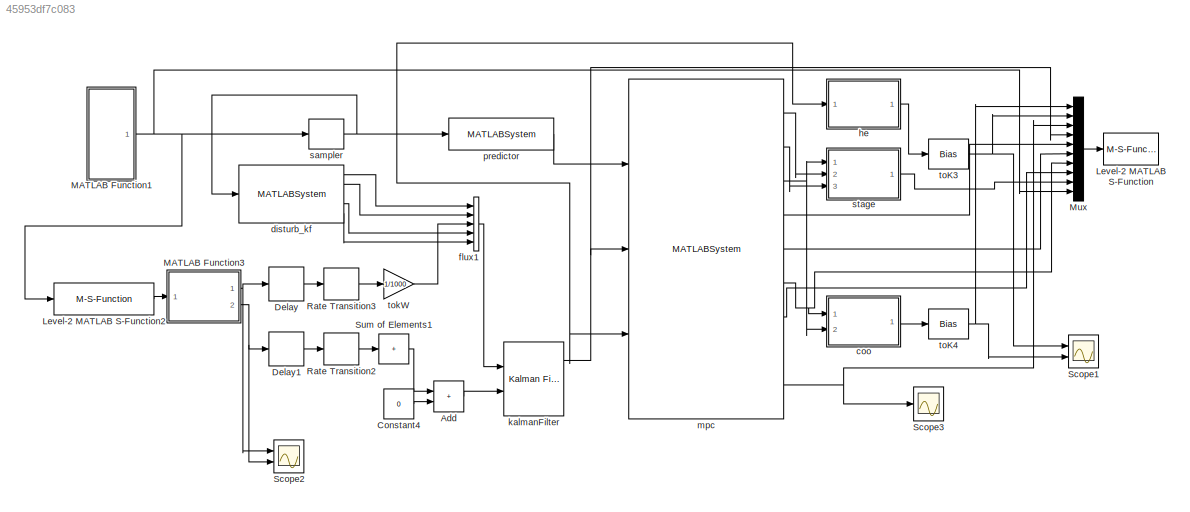
MODEL slx_45953df7c083
KIND model
CONFIG AbsTol = auto
CONFIG EnableMultiTasking = off
CONFIG FixedStep = 60
CONFIG MaxStep = auto
CONFIG MinStep = auto
CONFIG RelTol = 1e-5
CONFIG SampleTimeConstraint = Unconstrained
CONFIG Solver = FixedStepAuto
CONFIG SolverName = FixedStepAuto
CONFIG StartTime = 15*24*3600
CONFIG StopTime = 15*24*3600+30*60
BLOCK [Sum] Add
  IconShape = rectangular
  Ports = [2, 1]
BLOCK [Constant] Constant4
  Value = 0
BLOCK [Delay] Delay
  DelayLength = 1
  InputPortMap = u0
  Ports = [1, 1]
  SampleTime = 60
BLOCK [Delay] Delay1
  DelayLength = 1
  InitialCondition = 20
  InputPortMap = u0
  Ports = [1, 1]
  SampleTime = 60
BLOCK [M-S-Function] Level-2 MATLAB S-Function
  FunctionName = DBwrite_GEB
  Ports = [1, 1]
BLOCK [M-S-Function] Level-2 MATLAB S-Function2
  FunctionName = DBread_Meas_MPC
  Ports = [1, 1]
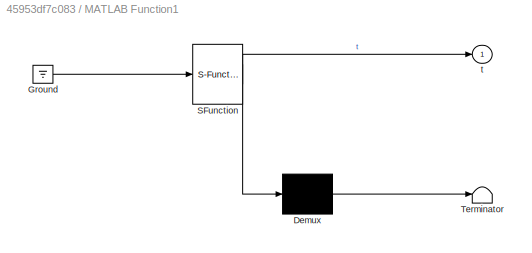
BLOCK [SubSystem] MATLAB Function1
  ErrorFcn = Stateflow.Translate.translate
  PermitHierarchicalResolution = ExplicitOnly
  Ports = [0, 1]
  RequestExecContextInheritance = off
  SFBlockType = MATLAB Function
  TreatAsAtomicUnit = on
BLOCK [Demux] MATLAB Function1/ Demux 
  Outputs = 1
  Ports = [1, 1]
BLOCK [Ground] MATLAB Function1/ Ground 
BLOCK [S-Function] MATLAB Function1/ SFunction 
  EnableBusSupport = on
  FunctionName = sf_sfun
  PortCounts = [1 2]
  Ports = [1, 2]
  SFcnIsStateOwnerBlock = off
  SFunctionDeploymentMode = off
  Tag = Stateflow S-Function 7
BLOCK [Terminator] MATLAB Function1/ Terminator 
BLOCK [Outport] MATLAB Function1/t
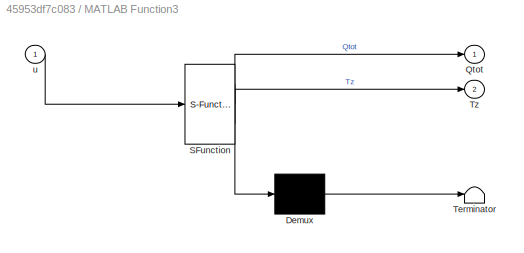
BLOCK [SubSystem] MATLAB Function3
  ErrorFcn = Stateflow.Translate.translate
  PermitHierarchicalResolution = ExplicitOnly
  Ports = [1, 2]
  RequestExecContextInheritance = off
  SFBlockType = MATLAB Function
  TreatAsAtomicUnit = on
BLOCK [Demux] MATLAB Function3/ Demux 
  Outputs = 1
  Ports = [1, 1]
BLOCK [S-Function] MATLAB Function3/ SFunction 
  EnableBusSupport = on
  FunctionName = sf_sfun
  PortCounts = [1 3]
  Ports = [1, 3]
  SFcnIsStateOwnerBlock = off
  SFunctionDeploymentMode = off
  Tag = Stateflow S-Function 8
BLOCK [Terminator] MATLAB Function3/ Terminator 
BLOCK [Outport] MATLAB Function3/Qtot
BLOCK [Outport] MATLAB Function3/Tz
  Port = 2
BLOCK [Inport] MATLAB Function3/u
BLOCK [Mux] Mux
  DisplayOption = bar
  Inputs = 10
  Ports = [10, 1]
BLOCK [RateTransition] Rate Transition2
  OutPortSampleTime = 900
BLOCK [RateTransition] Rate Transition3
  OutPortSampleTime = 900
BLOCK [Scope] Scope1
  Floating = off
  NumInputPorts = 2
  Ports = [2]
  ScopeSpecificationString = Simulink.scopes.TimeScopeBlockCfg('CurrentConfiguration', extmgr.ConfigurationSet(extmgr.Configuration('Core','General UI',true),extmgr.Configuration('Core','Source UI',true),extmgr.Configuration('Sources','WiredSimulink',true,'DataLoggingVariableName','ScopeData1'),extmgr.Configuration('Visuals','Time Domain',true,'SerializedDisplays',{struct('MinYLimReal','18.75','MaxYLimReal','31.25','YLabelRea...<+1394ch>
BLOCK [Scope] Scope2
  Floating = off
  NumInputPorts = 2
  Ports = [2]
  ScopeSpecificationString = Simulink.scopes.TimeScopeBlockCfg('CurrentConfiguration', extmgr.ConfigurationSet(extmgr.Configuration('Core','General UI',true),extmgr.Configuration('Core','Source UI',true),extmgr.Configuration('Sources','WiredSimulink',true,'DataLoggingVariableName','ScopeData1'),extmgr.Configuration('Visuals','Time Domain',true,'SerializedDisplays',{struct('MinYLimReal','18.75','MaxYLimReal','31.25','YLabelRea...<+1394ch>
BLOCK [Scope] Scope3
  Floating = off
  NumInputPorts = 1
  Ports = [1]
  ScopeSpecificationString = Simulink.scopes.TimeScopeBlockCfg('CurrentConfiguration', extmgr.ConfigurationSet(extmgr.Configuration('Core','General UI',true),extmgr.Configuration('Core','Source UI',true),extmgr.Configuration('Sources','WiredSimulink',true,'DataLoggingVariableName','ScopeData1'),extmgr.Configuration('Visuals','Time Domain',true,'SerializedDisplays',{struct('MinYLimReal','0.9','MaxYLimReal','1.1','YLabelReal','...<+1372ch>
BLOCK [Sum] Sum of Elements1
  IconShape = rectangular
  Inputs = +
  Ports = [1, 1]
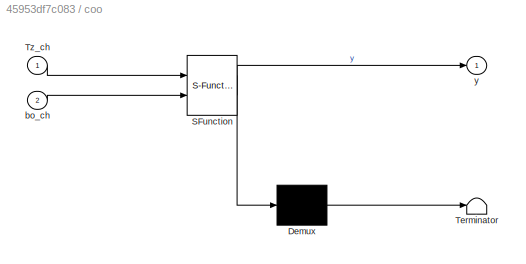
BLOCK [SubSystem] coo
  ErrorFcn = Stateflow.Translate.translate
  PermitHierarchicalResolution = ExplicitOnly
  Ports = [2, 1]
  RequestExecContextInheritance = off
  SFBlockType = MATLAB Function
  TreatAsAtomicUnit = on
BLOCK [Demux] coo/ Demux 
  Outputs = 1
  Ports = [1, 1]
BLOCK [S-Function] coo/ SFunction 
  EnableBusSupport = on
  FunctionName = sf_sfun
  PortCounts = [2 2]
  Ports = [2, 2]
  SFcnIsStateOwnerBlock = off
  SFunctionDeploymentMode = off
  Tag = Stateflow S-Function 4
BLOCK [Terminator] coo/ Terminator 
BLOCK [Inport] coo/Tz_ch
BLOCK [Inport] coo/bo_ch
  Port = 2
BLOCK [Outport] coo/y
BLOCK [MATLABSystem] disturb_kf
  CH = 1
  MaskDisplay = disp('get_predictors_block_kalman');\nport_label('input',1,'time');\nport_label('output',1,'out1');\nport_label('output',2,'out2');\nport_label('output',3,'out3');\nport_label('output',4,'out4');\nport_label('output',5,'out5');
  MaskType = get_predictors_block_kalman
  PH = 1
  Ports = [1, 5]
  SimulateUsing = Interpreted execution
  System = get_predictors_block_kalman
  dt = 900
  np = 5
BLOCK [Concatenate] flux1
  NumInputs = 5
  Ports = [5, 1]
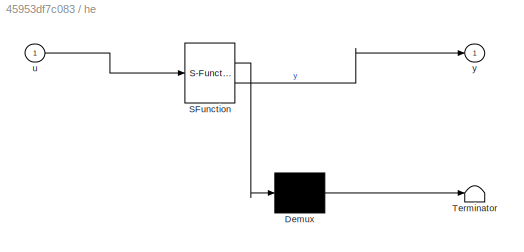
BLOCK [SubSystem] he
  ErrorFcn = Stateflow.Translate.translate
  PermitHierarchicalResolution = ExplicitOnly
  Ports = [1, 1]
  RequestExecContextInheritance = off
  SFBlockType = MATLAB Function
  TreatAsAtomicUnit = on
BLOCK [Demux] he/ Demux 
  Outputs = 1
  Ports = [1, 1]
BLOCK [S-Function] he/ SFunction 
  EnableBusSupport = on
  FunctionName = sf_sfun
  PortCounts = [1 2]
  Ports = [1, 2]
  SFcnIsStateOwnerBlock = off
  SFunctionDeploymentMode = off
  Tag = Stateflow S-Function 6
BLOCK [Terminator] he/ Terminator 
BLOCK [Inport] he/u
BLOCK [Outport] he/y
BLOCK [Reference] kalmanFilter  REF=ctrlSharedLib/Kalman Filter
  Ports = [2, 3]
  SourceBlock = ctrlSharedLib/Kalman Filter
  SourceProductBaseCode = CT,ID
  SourceType = ctrlKalmanFilter
BLOCK [MATLABSystem] mpc
  CH = 1
  MaskDisplay = disp('mpc_cooling_milp');\nport_label('input',1,'predictor');\nport_label('input',2,'states');\nport_label('input',3,'time');\nport_label('output',1,'b_cl_ch');\nport_label('output',2,'b_ch_ch');\nport_label('output',3,'bo_ch');\nport_label('output',4,'p_pred_ch');\nport_label('output',5,'q_pred_ch');\nport_label('output',6,'Tz_pred_ch');\nport_label('output',7,'price_ch');\nport_label('output',8,'nOpt_steps...<+41ch>
  MaskType = mpc_cooling_milp
  PH = 1
  Ports = [3, 9]
  SimulateUsing = Interpreted execution
  System = mpc_cooling_milp
  dt = 900
  nu = 8
  occ_end = 22
  occ_start = 6
  p_ch_max = 100
  p_ch_min = 0
  p_cl_max = 100
  p_cl_min = 0
  price_tou = [0.00746     0.00746     0.00746     0.00746     0.00746     0.00746     0.00746     0.00746     0.00746     0.00746     0.00746     0.00746     0.00746     0.01692     0.01692     0.01692     0.01692     0.01692     0.00746     0.00746     0.00746     0.00746     0.00746     0.00746]
  q_ch_max = 100
  q_ch_min = 0
  q_cl_max = 100
  q_cl_min = 0
  u_lb = [ 0, 0, 0, 0, 0, 0, 0, 0 ]
  u_ub = [ 1, 1, 1, 20, 20, 100, 100, 0.1 ]
  w = [ 1, 1000, 0 ]
BLOCK [MATLABSystem] predictor
  CH = 1
  MaskDisplay = disp('get_predictors_block_15min');\nport_label('input',1,'time');\nport_label('output',1,'predictors');
  MaskType = get_predictors_block_15min
  PH = 1
  Ports = [1, 1]
  SimulateUsing = Interpreted execution
  System = get_predictors_block_15min
  dt = 900
  np = 5
BLOCK [ZeroOrderHold] sampler
  SampleTime = 900
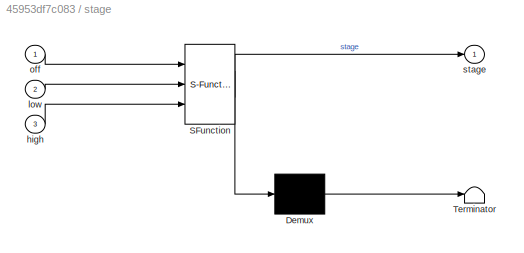
BLOCK [SubSystem] stage
  ErrorFcn = Stateflow.Translate.translate
  PermitHierarchicalResolution = ExplicitOnly
  Ports = [3, 1]
  RequestExecContextInheritance = off
  SFBlockType = MATLAB Function
  TreatAsAtomicUnit = on
BLOCK [Demux] stage/ Demux 
  Outputs = 1
  Ports = [1, 1]
BLOCK [S-Function] stage/ SFunction 
  EnableBusSupport = on
  FunctionName = sf_sfun
  PortCounts = [3 2]
  Ports = [3, 2]
  SFcnIsStateOwnerBlock = off
  SFunctionDeploymentMode = off
  Tag = Stateflow S-Function 1
BLOCK [Terminator] stage/ Terminator 
BLOCK [Inport] stage/high
  Port = 3
BLOCK [Inport] stage/low
  Port = 2
BLOCK [Inport] stage/off
BLOCK [Outport] stage/stage
BLOCK [Bias] toK3
  SaturateOnIntegerOverflow = off
BLOCK [Bias] toK4
  SaturateOnIntegerOverflow = off
BLOCK [Gain] tokW
  Gain = 1/1000
LINE Add:1 -> kalmanFilter:2
LINE Constant4:1 -> Add:2
LINE Delay1:1 -> Rate Transition2:1
LINE Delay:1 -> Rate Transition3:1
LINE Level-2 MATLAB S-Function2:1 -> MATLAB Function3:1
NET MATLAB Function1:1 -> Level-2 MATLAB S-Function2:1, Mux:10, sampler:1
NET MATLAB Function3:1 -> Delay:1, Scope2:1
NET MATLAB Function3:2 -> Delay1:1, Scope2:2
LINE Mux:1 -> Level-2 MATLAB S-Function:1
LINE Rate Transition2:1 -> Sum of Elements1:1
LINE Rate Transition3:1 -> tokW:1
LINE Sum of Elements1:1 -> Add:1
LINE coo:1 -> toK4:1
LINE disturb_kf:1 -> flux1:1
LINE disturb_kf:2 -> flux1:2
LINE disturb_kf:4 -> flux1:4
LINE disturb_kf:5 -> flux1:5
LINE flux1:1 -> kalmanFilter:1
LINE he:1 -> toK3:1
NET kalmanFilter:1 -> Mux:4, mpc:2
LINE mpc:1 -> stage:2
LINE mpc:2 -> stage:3
NET mpc:3 -> coo:2, stage:1
LINE mpc:4 -> Mux:5
LINE mpc:5 -> Mux:6
NET mpc:6 -> Mux:7, coo:1
LINE mpc:7 -> Mux:8
NET mpc:9 -> Mux:3, Scope3:1
LINE predictor:1 -> mpc:1
NET sampler:1 -> disturb_kf:1, he:1, mpc:3, predictor:1
LINE stage:1 -> Mux:9
NET toK3:1 -> Mux:2, Scope1:1
NET toK4:1 -> Mux:1, Scope1:2
LINE tokW:1 -> flux1:3
note: NET lines group one-source signal fan-out (src -> all destinations, sorted); 1:1 wires keep LINE
CHART stage states=1 transitions=1
  STATE_LABEL 'eML_blk_kernel()'
  STATE_LABEL 'SCRIPT:\nfunction stage = fcn(off,low,high)\n% detemine the stage of MPC predict\n[a,b]=max([off,low,high]);\nstage=b-1;\n'
CHART coo states=1 transitions=1
  STATE_LABEL 'eML_blk_kernel()'
  STATE_LABEL 'SCRIPT:\nfunction y = fcn(Tz_ch, bo_ch)\n% transfer predicted zone temperature to heating setpoint\n% - when heating is off, the zone temperature setpoint is set to heating\n% lower bound so that local heat pump controller wont activate heating\n% - when heating is on, the predicted zone temperature is treated as zone\n% temperature setpoint\n% -------------------------------------------------\nTCooHig = ...<+72ch>'
CHART he states=1 transitions=1
  STATE_LABEL 'eML_blk_kernel()'
  STATE_LABEL 'SCRIPT:\nfunction y = fcn(u)\n% to control horizon signal\nTHea = 20*ones(1, 24);\nTHea(8:18) = 20;\nh = floor(mod(u, 86400)/3600) + 1;\ny = THea(h);\n'
CHART MATLAB Function1 states=1 transitions=1
  STATE_LABEL 'eML_blk_kernel()'
  STATE_LABEL "SCRIPT:\nfunction t  = fcn\ncoder.extrinsic('xlsread');\nT=0;\n[T] = xlsread('Time.xlsx', 1,'B1');\nt=0;\nt=T+15*60; %237*86400+645*60;\n\n\n"
CHART MATLAB Function3 states=1 transitions=1
  STATE_LABEL 'eML_blk_kernel()'
  STATE_LABEL 'SCRIPT:\nfunction [Qtot,Tz] = fcn(u)\n%% Inputs\n% Tin:  inlet air temperature [°C]\n% Tout: outlet air temperature [°C]\n% win:  inlet air humidity ratio [kg/kg]\n% wout: outlet air humidity ratio [kg/kg]\n% m:    inlet air mass flow rate [kg/s]\n%% Outputs\n% Qtot: total load [W]\n% Tz: Tz = Tout, zone air temperature [°C]\n%% Main\n% initialization\nTin = zeros(1);\nTout = zeros(1);\nwin = zeros(1);\nwout = ze...<+285ch>'
CHART  states=0 transitions=0
CHART  states=0 transitions=0
CHART  states=0 transitions=0
CHART  states=0 transitions=0
CHART  states=0 transitions=0
